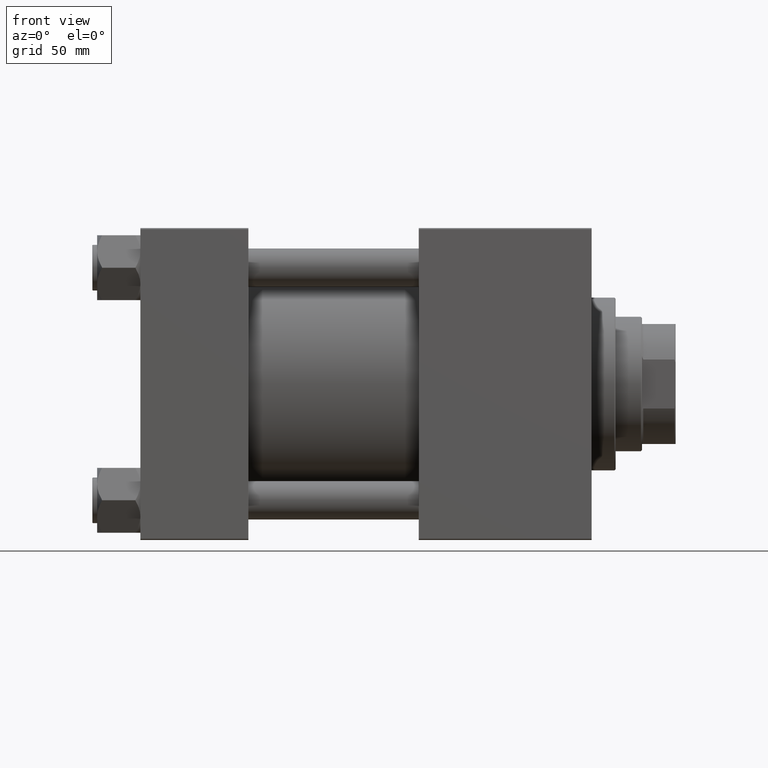
[diagram: clean part render]
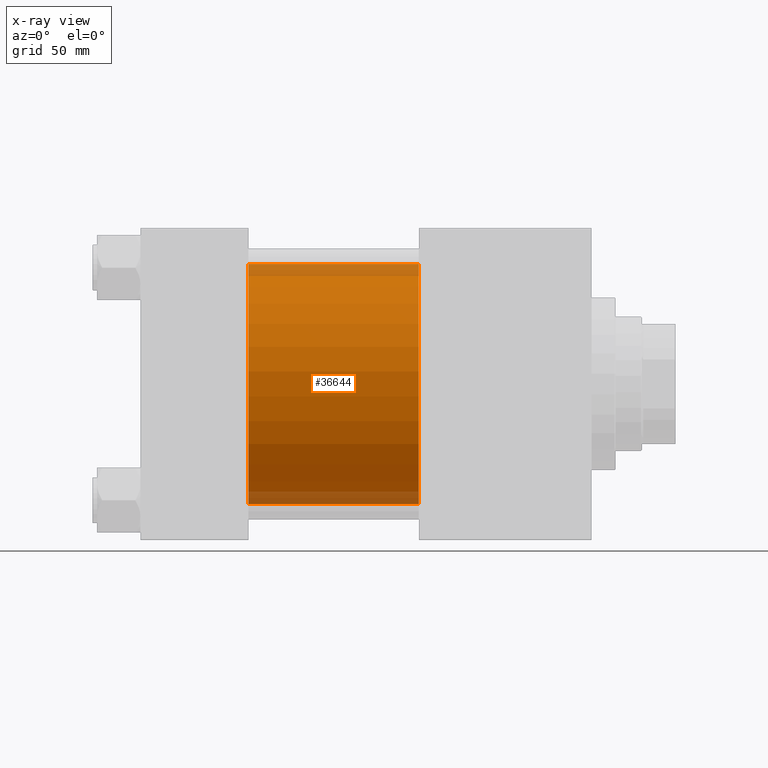
[diagram: x-ray — body ghosted, one internal face saturated and labeled with its STEP entity id]
A machine part, front view, then the same camera in x-ray: the body is ghosted and one INTERNAL B-rep face — a face not visible from any outside direction — is saturated and labeled: STEP entity #36644.
In plain terms, the highlighted cylindrical surface (partial cylindrical patch) has radius 50 mm, axis along (-1, -0, -0).
Its self-contained STEP definition (entity closure, byte-faithful):
#1813 = CARTESIAN_POINT ( 'NONE',  ( 45.00000000000000000, -2.602085213965210642E-15, 0.000000000000000000 ) ) ;
#3011 = CARTESIAN_POINT ( 'NONE',  ( 45.00000000000000000, 3.521148781771555838E-15, -50.00000000000000000 ) ) ;
#3021 = VERTEX_POINT ( 'NONE', #46122 ) ;
#3039 = DIRECTION ( 'NONE',  ( 0.000000000000000000, 0.000000000000000000, -1.000000000000000000 ) ) ;
#3124 = VERTEX_POINT ( 'NONE', #3011 ) ;
#3660 = CIRCLE ( 'NONE', #23349, 50.00000000000000000 ) ;
#5346 = CARTESIAN_POINT ( 'NONE',  ( 115.9999999999999858, 3.521148781771555838E-15, -50.00000000000000000 ) ) ;
#6669 = AXIS2_PLACEMENT_3D ( 'NONE', #49856, #22417, #15244 ) ;
#10038 = DIRECTION ( 'NONE',  ( 0.000000000000000000, 0.000000000000000000, -1.000000000000000000 ) ) ;
#11191 = AXIS2_PLACEMENT_3D ( 'NONE', #43759, #39650, #3039 ) ;
#12880 = VERTEX_POINT ( 'NONE', #19947 ) ;
#14504 = EDGE_CURVE ( 'NONE', #3021, #3124, #44340, .T. ) ;
#15213 = DIRECTION ( 'NONE',  ( -1.000000000000000000, -0.000000000000000000, -0.000000000000000000 ) ) ;
#15244 = DIRECTION ( 'NONE',  ( 0.000000000000000000, 0.000000000000000000, 1.000000000000000000 ) ) ;
#17366 = VECTOR ( 'NONE', #36634, 1000.000000000000000 ) ;
#19095 = VERTEX_POINT ( 'NONE', #26814 ) ;
#19947 = CARTESIAN_POINT ( 'NONE',  ( 45.00000000000000000, -2.602085213965210642E-15, 50.00000000000000000 ) ) ;
#22417 = DIRECTION ( 'NONE',  ( -1.000000000000000000, -0.000000000000000000, -0.000000000000000000 ) ) ;
#23349 = AXIS2_PLACEMENT_3D ( 'NONE', #1813, #33114, #10038 ) ;
#23541 = EDGE_CURVE ( 'NONE', #12880, #3124, #3660, .T. ) ;
#24145 = ORIENTED_EDGE ( 'NONE', *, *, #31593, .F. ) ;
#26814 = CARTESIAN_POINT ( 'NONE',  ( 115.9999999999999858, -2.602085213965210642E-15, 50.00000000000000000 ) ) ;
#31593 = EDGE_CURVE ( 'NONE', #19095, #12880, #50334, .T. ) ;
#31909 = ORIENTED_EDGE ( 'NONE', *, *, #48864, .T. ) ;
#33114 = DIRECTION ( 'NONE',  ( 1.000000000000000000, 0.000000000000000000, 0.000000000000000000 ) ) ;
#33753 = EDGE_LOOP ( 'NONE', ( #31909, #48476, #45230, #24145 ) ) ;
#34717 = CYLINDRICAL_SURFACE ( 'NONE', #6669, 50.00000000000000000 ) ;
#36634 = DIRECTION ( 'NONE',  ( -1.000000000000000000, -0.000000000000000000, -0.000000000000000000 ) ) ;
#36644 = ADVANCED_FACE ( 'NONE', ( #42668 ), #34717, .F. ) ;
#39650 = DIRECTION ( 'NONE',  ( 1.000000000000000000, 0.000000000000000000, 0.000000000000000000 ) ) ;
#40208 = VECTOR ( 'NONE', #15213, 1000.000000000000000 ) ;
#42668 = FACE_OUTER_BOUND ( 'NONE', #33753, .T. ) ;
#43759 = CARTESIAN_POINT ( 'NONE',  ( 115.9999999999999858, -2.602085213965210642E-15, 0.000000000000000000 ) ) ;
#44340 = LINE ( 'NONE', #5346, #17366 ) ;
#45230 = ORIENTED_EDGE ( 'NONE', *, *, #23541, .F. ) ;
#46122 = CARTESIAN_POINT ( 'NONE',  ( 115.9999999999999858, 3.521148781771555838E-15, -50.00000000000000000 ) ) ;
#47493 = CARTESIAN_POINT ( 'NONE',  ( 115.9999999999999858, -2.602085213965210642E-15, 50.00000000000000000 ) ) ;
#48043 = CIRCLE ( 'NONE', #11191, 50.00000000000000000 ) ;
#48476 = ORIENTED_EDGE ( 'NONE', *, *, #14504, .T. ) ;
#48864 = EDGE_CURVE ( 'NONE', #19095, #3021, #48043, .T. ) ;
#49856 = CARTESIAN_POINT ( 'NONE',  ( 115.9999999999999858, -2.602085213965210642E-15, 0.000000000000000000 ) ) ;
#50334 = LINE ( 'NONE', #47493, #40208 ) ;